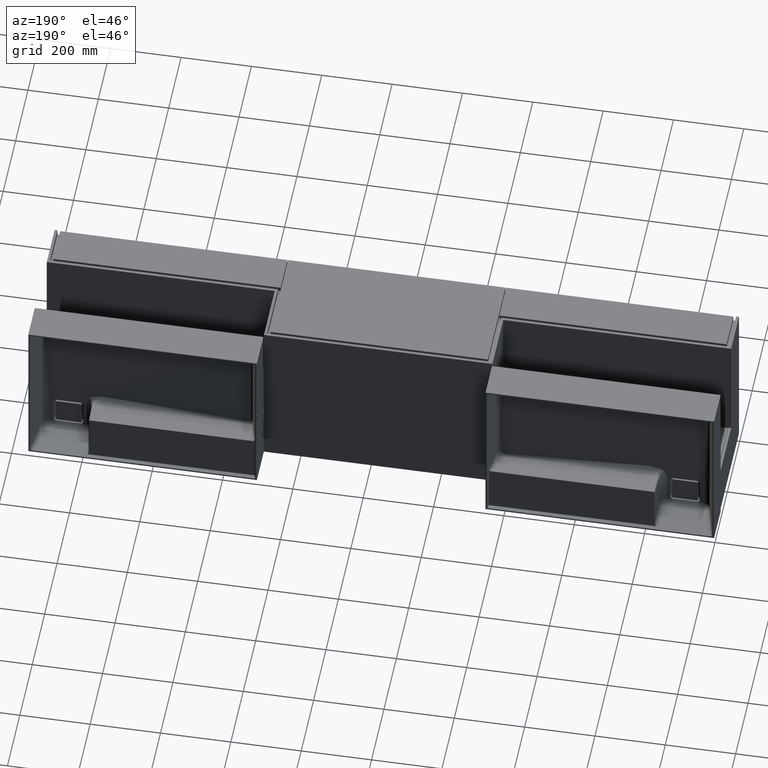
[diagram: clean part render]
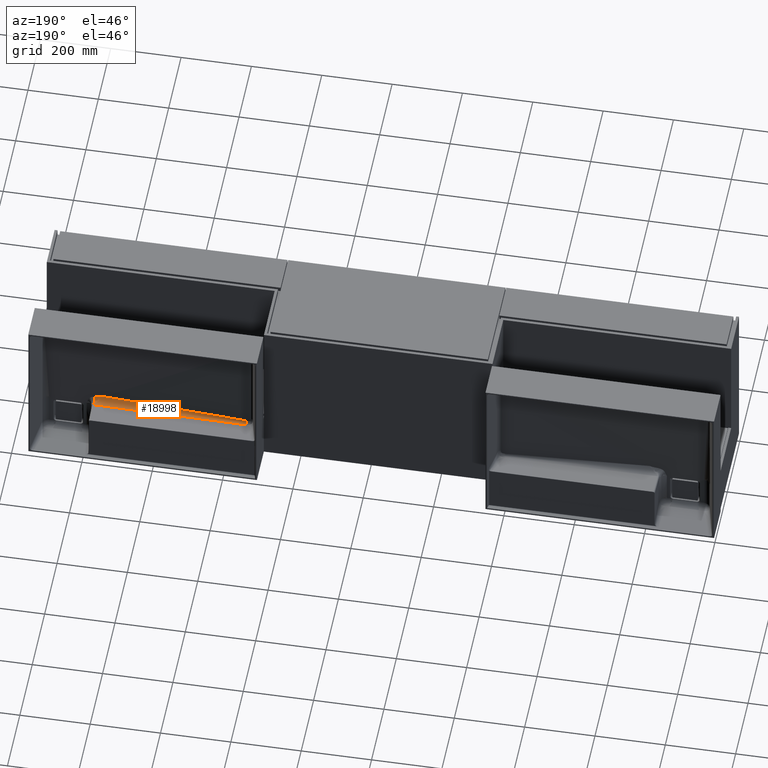
[diagram: same view with one face highlighted and labeled with its STEP entity id]
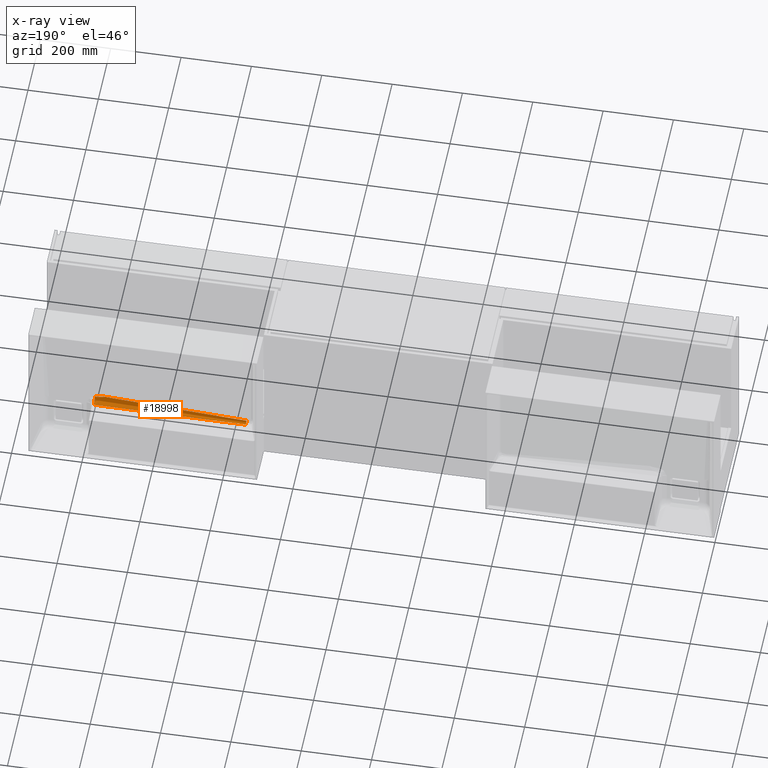
[diagram: x-ray of the same camera — body ghosted, the highlighted face saturated]
A machine part, auxiliary view. The second image highlights one B-rep face of the part: STEP entity #18998.
The next image is the same camera in x-ray: the body ghosted, the highlighted face saturated — about 0% of this face is hidden behind the body in this view.
In plain terms, the highlighted face is a freeform B-spline surface patch.
Its self-contained STEP definition (entity closure, byte-faithful):
#456 = CARTESIAN_POINT ( 'NONE',  ( 1343.068024518727043, 337.4440480074061384, -315.4900018526547569 ) ) ;
#632 = CARTESIAN_POINT ( 'NONE',  ( 1487.628033684732145, 340.7665495266904827, -323.3703597469260558 ) ) ;
#1091 = CARTESIAN_POINT ( 'NONE',  ( 1343.068024518727043, 337.4440480074061384, -315.4900018526547569 ) ) ;
#1772 = CARTESIAN_POINT ( 'NONE',  ( 1758.940962444132083, 324.7265386575339789, -306.8509008232539941 ) ) ;
#1791 = B_SPLINE_CURVE_WITH_KNOTS ( 'NONE', 3,
 ( #456, #11464, #22450, #33338 ),
 .UNSPECIFIED., .F., .F.,
 ( 4, 4 ),
 ( -0.4346882425457793686, -0.02687985659662373017 ),
 .UNSPECIFIED. ) ;
#2747 = EDGE_CURVE ( 'NONE', #29411, #24287, #16491, .T. ) ;
#3236 = CARTESIAN_POINT ( 'NONE',  ( 1343.315383198060772, 345.2308073616522393, -323.4872604524570079 ) ) ;
#3319 = CARTESIAN_POINT ( 'NONE',  ( 1631.699632472984376, 328.5153372332214872, -323.0495504626819070 ) ) ;
#3995 = CARTESIAN_POINT ( 'NONE',  ( 1755.770955481895498, 324.7556448546311572, -306.2330658854567105 ) ) ;
#4443 = EDGE_LOOP ( 'NONE', ( #11751, #12939, #13306, #13924, #15029 ) ) ;
#5957 = CARTESIAN_POINT ( 'NONE',  ( 1776.584780743779220, 342.5450962275781990, -323.4169326313427746 ) ) ;
#6043 = CARTESIAN_POINT ( 'NONE',  ( 1775.997303880210438, 324.0515427703931550, -304.4234434570519738 ) ) ;
#6373 =( BOUNDED_CURVE ( )  B_SPLINE_CURVE ( 2, ( #11351, #22333, #33228 ),
 .UNSPECIFIED., .F., .T. ) 
 B_SPLINE_CURVE_WITH_KNOTS ( ( 3, 3 ),
 ( 0.0000000000000000000, 1.000000000000000000 ),
 .UNSPECIFIED. ) 
 CURVE ( )  GEOMETRIC_REPRESENTATION_ITEM ( )  RATIONAL_B_SPLINE_CURVE ( ( 1.000000000000000000, 0.7641457412185775899, 0.9204434452545329215 ) ) 
 REPRESENTATION_ITEM ( '' )  );
#6733 = CARTESIAN_POINT ( 'NONE',  ( 1753.156628572261297, 324.7865976977785749, -305.5760323383931905 ) ) ;
#7394 = CARTESIAN_POINT ( 'NONE',  ( 1776.018727805431581, 324.6229568114037534, -309.0496244574870843 ) ) ;
#8760 = CARTESIAN_POINT ( 'NONE',  ( 1343.068024518727043, 337.4440480074061384, -315.4900018526547569 ) ) ;
#9433 = CARTESIAN_POINT ( 'NONE',  ( 1751.635324151836357, 324.8115746191029984, -305.0458492099913315 ) ) ;
#10091 = CARTESIAN_POINT ( 'NONE',  ( 1767.458447236063648, 324.6680791695544031, -308.0918157390205465 ) ) ;
#10370 = VERTEX_POINT ( 'NONE', #30708 ) ;
#10672 = EDGE_CURVE ( 'NONE', #10906, #10370, #27957, .T. ) ;
#10807 = EDGE_CURVE ( 'NONE', #20470, #10370, #6373, .T. ) ;
#10906 = VERTEX_POINT ( 'NONE', #25379 ) ;
#11351 = CARTESIAN_POINT ( 'NONE',  ( 1776.584780743779220, 342.5450962275781990, -323.4169326313427746 ) ) ;
#11464 = CARTESIAN_POINT ( 'NONE',  ( 1478.939113165328081, 333.2409267287021635, -315.3799392485049111 ) ) ;
#11644 = CARTESIAN_POINT ( 'NONE',  ( 1632.272130256823175, 347.0093540719751672, -323.5338333371207113 ) ) ;
#11751 = ORIENTED_EDGE ( 'NONE', *, *, #10672, .T. ) ;
#12144 = CARTESIAN_POINT ( 'NONE',  ( 1750.672703907352570, 324.8349497930412895, -304.5496662463542634 ) ) ;
#12797 = CARTESIAN_POINT ( 'NONE',  ( 1761.064008319415507, 324.7100343581348625, -307.2012362778858687 ) ) ;
#12939 = ORIENTED_EDGE ( 'NONE', *, *, #10807, .F. ) ;
#13306 = ORIENTED_EDGE ( 'NONE', *, *, #20555, .T. ) ;
#13740 = CARTESIAN_POINT ( 'NONE',  ( 1776.584780743779220, 342.5450962275781990, -323.4169326313427746 ) ) ;
#13924 = ORIENTED_EDGE ( 'NONE', *, *, #2747, .T. ) ;
#14352 = CARTESIAN_POINT ( 'NONE',  ( 1776.012282959694858, 324.0510793981750908, -322.9326497571487948 ) ) ;
#14815 = CARTESIAN_POINT ( 'NONE',  ( 1343.315383198060772, 345.2308073616522393, -323.4872604524570079 ) ) ;
#15019 = CARTESIAN_POINT ( 'NONE',  ( 1756.297888460271906, 324.7503751772955525, -306.3449249084019357 ) ) ;
#15029 = ORIENTED_EDGE ( 'NONE', *, *, #18858, .T. ) ;
#16491 =( BOUNDED_CURVE ( )  B_SPLINE_CURVE ( 2, ( #14815, #25790, #1091 ),
 .UNSPECIFIED., .F., .F. ) 
 B_SPLINE_CURVE_WITH_KNOTS ( ( 3, 3 ),
 ( 0.0000000000000000000, 1.000000000000000000 ),
 .UNSPECIFIED. ) 
 CURVE ( )  GEOMETRIC_REPRESENTATION_ITEM ( )  RATIONAL_B_SPLINE_CURVE ( ( 1.000000000000000000, 0.7162975751252874668, 1.000000000000000000 ) ) 
 REPRESENTATION_ITEM ( '' )  );
#16958 = CARTESIAN_POINT ( 'NONE',  ( 1632.272130256823175, 347.0093540719751672, -323.5338333371207113 ) ) ;
#17048 = CARTESIAN_POINT ( 'NONE',  ( 1343.074331499562504, 337.4438529033142800, -323.2833518737482450 ) ) ;
#17728 = CARTESIAN_POINT ( 'NONE',  ( 1754.195135619316716, 324.7731144977070130, -305.8622391571532830 ) ) ;
#18858 = EDGE_CURVE ( 'NONE', #24287, #10906, #1791, .T. ) ;
#18998 = ADVANCED_FACE ( 'NONE', ( #22456 ), #31882, .F. ) ;
#19041 = CARTESIAN_POINT ( 'NONE',  ( 1343.315383198060772, 345.2308073616522393, -323.4872604524570079 ) ) ;
#19758 = CARTESIAN_POINT ( 'NONE',  ( 1487.380675005437979, 332.9797901723597420, -315.3731011471217016 ) ) ;
#20425 = CARTESIAN_POINT ( 'NONE',  ( 1751.885109507924426, 324.8069209751062658, -305.1446317420964078 ) ) ;
#20470 = VERTEX_POINT ( 'NONE', #13740 ) ;
#20555 = EDGE_CURVE ( 'NONE', #20470, #29411, #24098, .T. ) ;
#21081 = CARTESIAN_POINT ( 'NONE',  ( 1771.735516287872542, 324.6443237527144561, -308.5960700885868278 ) ) ;
#22333 = CARTESIAN_POINT ( 'NONE',  ( 1776.138640121380377, 328.1329318382709062, -323.0395368250019601 ) ) ;
#22450 = CARTESIAN_POINT ( 'NONE',  ( 1614.802514588331860, 329.0380432513831579, -305.7710013909584745 ) ) ;
#22456 = FACE_OUTER_BOUND ( 'NONE', #4443, .T. ) ;
#22622 = CARTESIAN_POINT ( 'NONE',  ( 1776.584780743534111, 342.5450962369287708, -323.4169326315875423 ) ) ;
#23120 = CARTESIAN_POINT ( 'NONE',  ( 1750.903433881881256, 324.8278122476279464, -304.7011743568679663 ) ) ;
#23780 = CARTESIAN_POINT ( 'NONE',  ( 1762.127666965743174, 324.7024201626881563, -307.3628622008577054 ) ) ;
#24098 = B_SPLINE_CURVE_WITH_KNOTS ( 'NONE', 3,
 ( #5957, #16958, #27948, #3236 ),
 .UNSPECIFIED., .F., .F.,
 ( 4, 4 ),
 ( -0.4346882425457793686, -0.001543048426497328762 ),
 .UNSPECIFIED. ) ;
#24287 = VERTEX_POINT ( 'NONE', #27859 ) ;
#25328 = CARTESIAN_POINT ( 'NONE',  ( 1343.315383198021436, 345.2308073617368223, -323.4872604524592248 ) ) ;
#25379 = CARTESIAN_POINT ( 'NONE',  ( 1750.672703907352570, 324.8349497930412895, -304.5496662463542634 ) ) ;
#25790 = CARTESIAN_POINT ( 'NONE',  ( 1343.074331499562504, 337.4438529033142800, -323.2833518737482450 ) ) ;
#25991 = CARTESIAN_POINT ( 'NONE',  ( 1757.881509471888648, 324.7354091234105908, -306.6626081474763623 ) ) ;
#27859 = CARTESIAN_POINT ( 'NONE',  ( 1343.068024518727043, 337.4440480074061384, -315.4900018526547569 ) ) ;
#27948 = CARTESIAN_POINT ( 'NONE',  ( 1487.628033684732145, 340.7665495266904827, -323.3703597469260558 ) ) ;
#27957 = B_SPLINE_CURVE_WITH_KNOTS ( 'NONE', 3,
 ( #12144, #23120, #34007, #9433, #20425, #31363, #6733, #17728, #28692, #3995, #15019, #25991, #1772, #12797, #23780, #34647, #10091, #21081, #32012, #7394 ),
 .UNSPECIFIED., .F., .F.,
 ( 4, 2, 2, 2, 2, 2, 2, 2, 2, 4 ),
 ( 0.0000000000000000000, 0.0008055719474764946571, 0.001611143894952989314, 0.003222287789905352393, 0.004833431684857715689, 0.006444575579810078551, 0.009666863369714806878, 0.01288915115961953607, 0.01933372673942901354, 0.02577830231923849275 ),
 .UNSPECIFIED. ) ;
#28033 = CARTESIAN_POINT ( 'NONE',  ( 1487.386981986273213, 332.9795950682678836, -323.1664511682150192 ) ) ;
#28692 = CARTESIAN_POINT ( 'NONE',  ( 1754.719870846286540, 324.7670150134592859, -305.9917124256151055 ) ) ;
#29411 = VERTEX_POINT ( 'NONE', #19041 ) ;
#30698 = CARTESIAN_POINT ( 'NONE',  ( 1631.684653393499730, 328.5158006054395514, -304.5403441625851428 ) ) ;
#30708 = CARTESIAN_POINT ( 'NONE',  ( 1776.018727805431581, 324.6229568114037534, -309.0496244574870843 ) ) ;
#31363 = CARTESIAN_POINT ( 'NONE',  ( 1752.642030155777775, 324.7939460989395570, -305.4200484096360242 ) ) ;
#31882 =( BOUNDED_SURFACE ( )  B_SPLINE_SURFACE ( 2, 3, ( 
 ( #8760, #19758, #30698, #6043 ),
 ( #17048, #28033, #3319, #14352 ),
 ( #25328, #632, #11644, #22622 ) ),
 .UNSPECIFIED., .F., .F., .F. ) 
 B_SPLINE_SURFACE_WITH_KNOTS ( ( 3, 3 ),
 ( 4, 4 ),
 ( 0.0000000000000000000, 1.000000000000000000 ),
 ( -0.4346882425457793686, -0.001543048426497325726 ),
 .UNSPECIFIED. ) 
 GEOMETRIC_REPRESENTATION_ITEM ( )  RATIONAL_B_SPLINE_SURFACE ( (
 ( 1.000000000000000000, 1.000000000000000000, 1.000000000000000000, 1.000000000000000000),
 ( 0.7162975751252874668, 0.7162975751252874668, 0.7162975751252874668, 0.7162975751252874668),
 ( 1.000000000000000000, 1.000000000000000000, 1.000000000000000000, 1.000000000000000000) ) ) 
 REPRESENTATION_ITEM ( '' )  SURFACE ( )  );
#32012 = CARTESIAN_POINT ( 'NONE',  ( 1773.876548386070226, 324.6333546551163636, -308.8289102535022153 ) ) ;
#33228 = CARTESIAN_POINT ( 'NONE',  ( 1776.018727805431581, 324.6229568114036965, -309.0496244574870843 ) ) ;
#33338 = CARTESIAN_POINT ( 'NONE',  ( 1750.672703907352570, 324.8349497930412895, -304.5496662463542634 ) ) ;
#34007 = CARTESIAN_POINT ( 'NONE',  ( 1751.144738645146617, 324.8220531439235970, -304.8234223945266308 ) ) ;
#34647 = CARTESIAN_POINT ( 'NONE',  ( 1765.322834579598748, 324.6808296650963257, -307.8211619812082063 ) ) ;